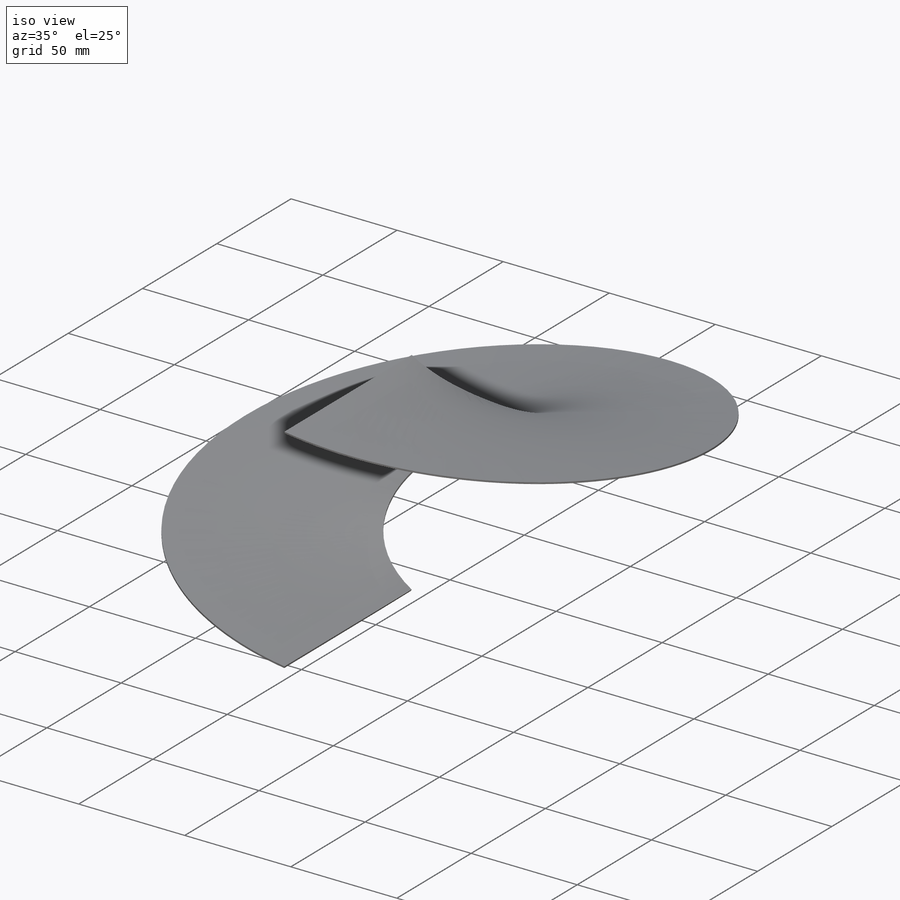
[diagram: iso view]
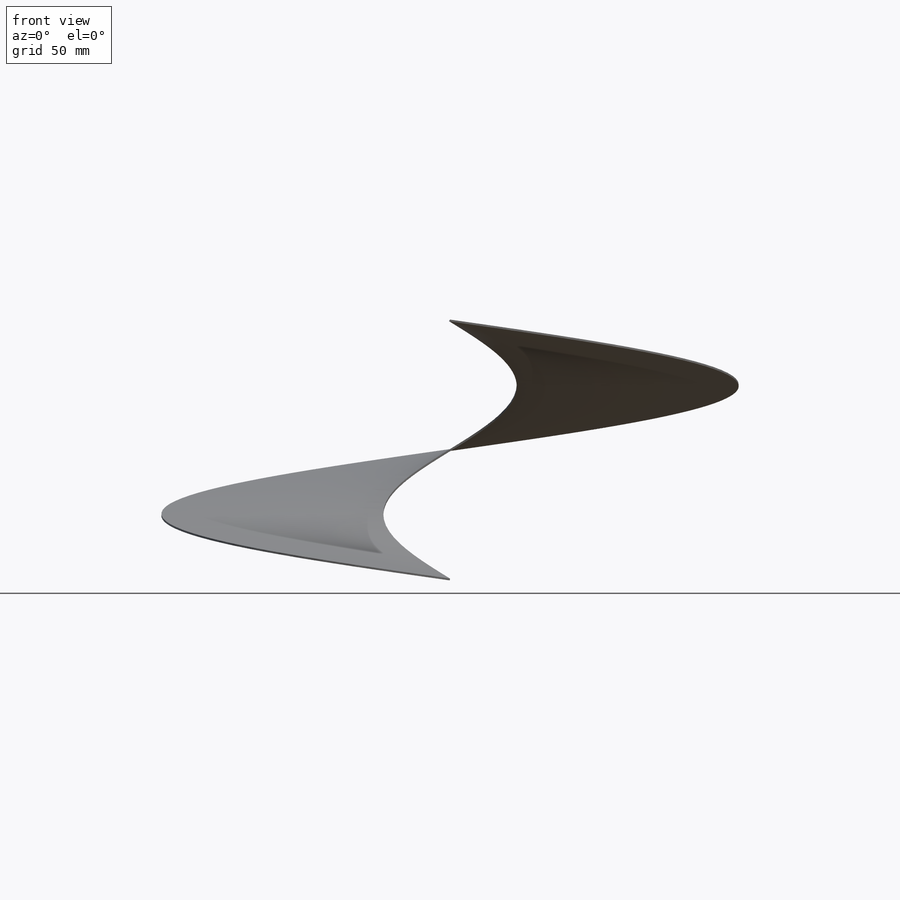
[diagram: front view]
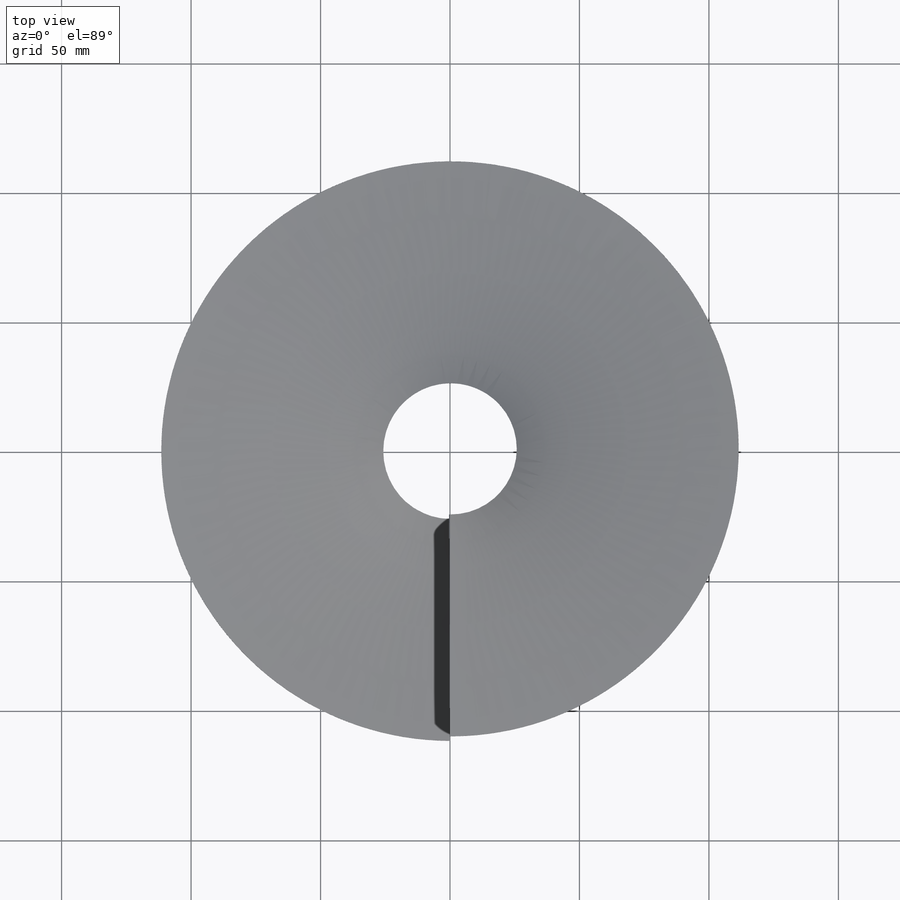
[diagram: top view]
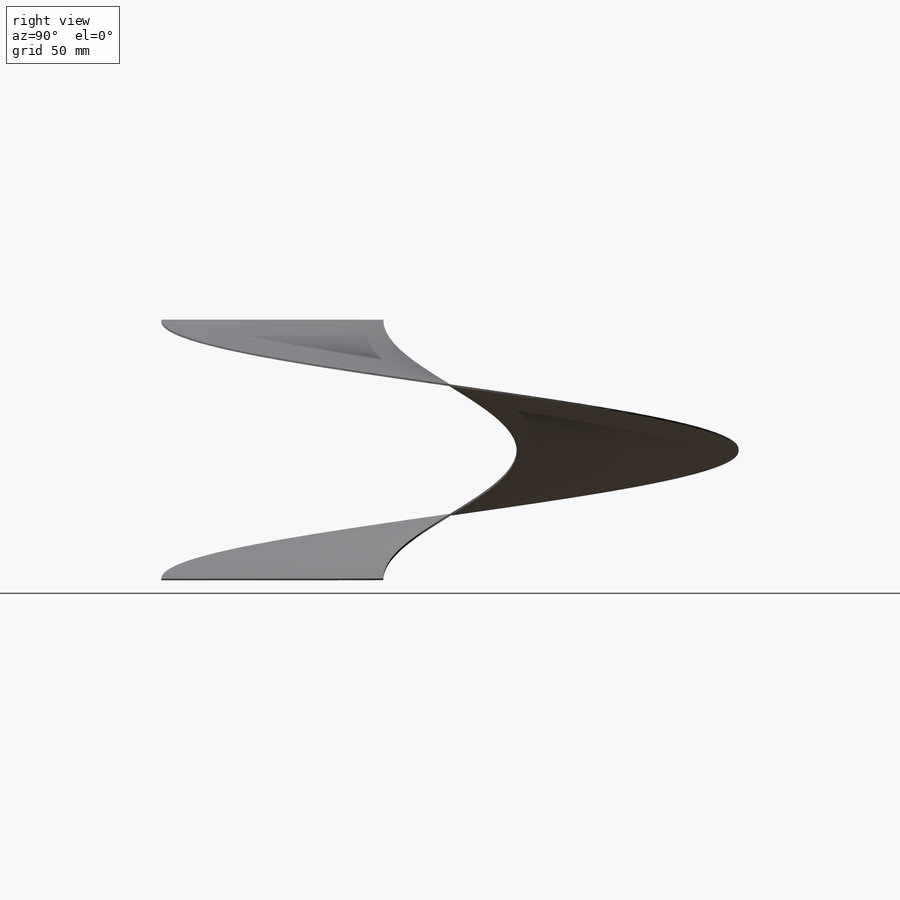
[diagram: right view]
SOLIDWORKS PART (.sldprt)
format: sldprt  version: not decoded by parser v0  size: 352,256 bytes
history: native  units: mm
features: sketch x6, plane x3, material x1, helix x1, sheet_metal_op x1 + 1 further entry (+12 scaffold rows collapsed)
feature tree (25):
  scaffold x12  (default folders/planes/origin — collapsed)
  material  "Material <nicht festgelegt>"
  plane  "Ebene vorne"
  plane  "Ebene oben"
  plane  "Ebene rechts"
  sketch  "Skizze1"
  sketch  "Skizze2"  dims[D1=~51.542626mm]
  helix  "Spirale/Helix1"  Pitch=100mm Spirale/Helix2=0
  sketch  "3D-Skizze1"  dims[D1=0.0mm]
  sketch  "3D-Skizze2"  dims[D1=0.0mm]
  sheet_metal_op  "Blech1"  Dicke=0.7366mm
  "Abwicklung1"
  sketch  "Biegung-Linien1"
  sketch  "Skizze3"  dims[D1=31.5mm]
decode coverage: 6 of 8 modeling features carry decoded parameters; 1 rows unclassified (native names shown)
note: ~ marks probable driven/reference dimensions
note: suppression state not decoded; provenance and decode notes live in map.json
